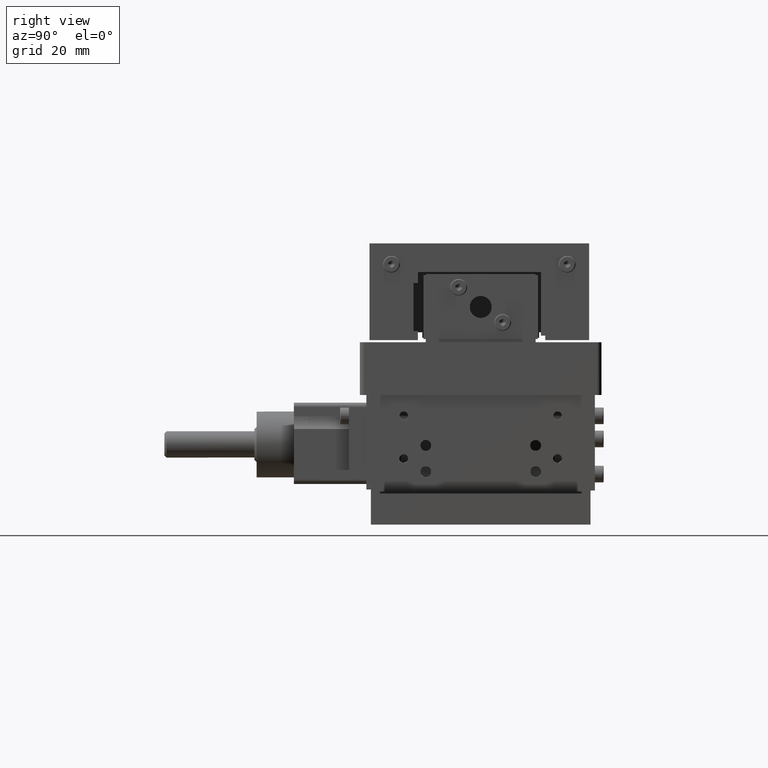
[diagram: clean part render]
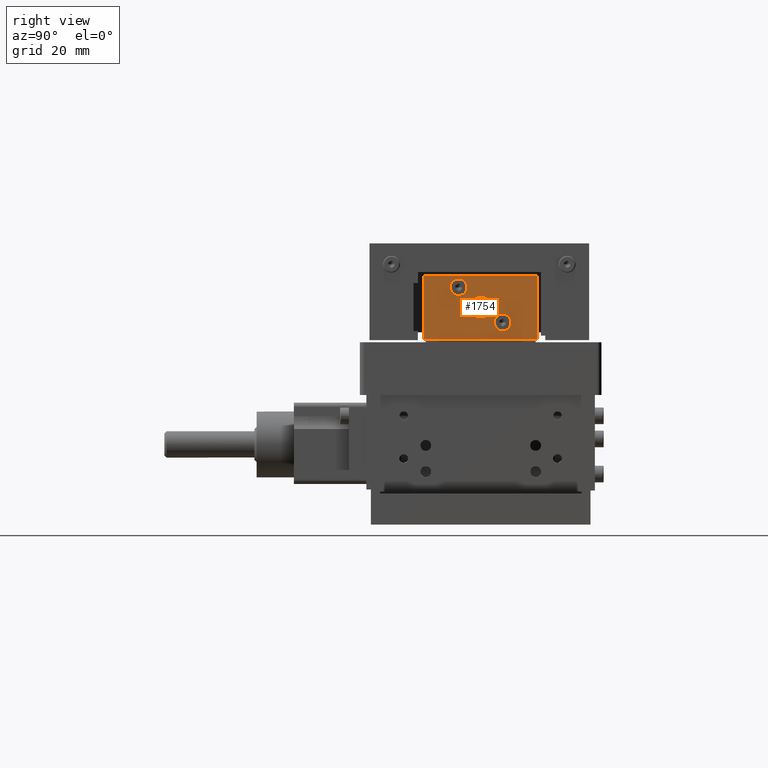
[diagram: same view with one face highlighted and labeled with its STEP entity id]
A machine part, right view. The second image highlights one B-rep face of the part: STEP entity #1754.
In plain terms, the highlighted face is a freeform B-spline surface patch.
Its self-contained STEP definition (entity closure, byte-faithful):
#790=FACE_BOUND('',#4293,.T.);
#791=FACE_BOUND('',#4294,.T.);
#792=FACE_BOUND('',#4295,.T.);
#1754=ADVANCED_FACE('',(#2938,#790,#791,#792),#38884,.T.);
#2938=FACE_OUTER_BOUND('',#4292,.T.);
#4292=EDGE_LOOP('',(#9193,#9194,#9195,#9196));
#4293=EDGE_LOOP('',(#9197,#9198));
#4294=EDGE_LOOP('',(#9199,#9200));
#4295=EDGE_LOOP('',(#9201,#9202));
#9193=ORIENTED_EDGE('',*,*,#33964,.T.);
#9194=ORIENTED_EDGE('',*,*,#33965,.T.);
#9195=ORIENTED_EDGE('',*,*,#33966,.T.);
#9196=ORIENTED_EDGE('',*,*,#33967,.T.);
#9197=ORIENTED_EDGE('',*,*,#33056,.F.);
#9198=ORIENTED_EDGE('',*,*,#33058,.F.);
#9199=ORIENTED_EDGE('',*,*,#33968,.T.);
#9200=ORIENTED_EDGE('',*,*,#33969,.T.);
#9201=ORIENTED_EDGE('',*,*,#33970,.T.);
#9202=ORIENTED_EDGE('',*,*,#33971,.T.);
#13425=PCURVE('',#39227,#19204);
#13427=PCURVE('',#39228,#19206);
#14972=PCURVE('',#38884,#20751);
#14973=PCURVE('',#38884,#20752);
#14974=PCURVE('',#38884,#20753);
#14975=PCURVE('',#38884,#20754);
#14976=PCURVE('',#38884,#20755);
#14977=PCURVE('',#38884,#20756);
#14978=PCURVE('',#38884,#20757);
#14979=PCURVE('',#38884,#20758);
#14980=PCURVE('',#38884,#20759);
#14981=PCURVE('',#38884,#20760);
#14982=PCURVE('',#38885,#20761);
#14986=PCURVE('',#38886,#20765);
#14992=PCURVE('',#38887,#20771);
#14996=PCURVE('',#38888,#20775);
#15004=PCURVE('',#39410,#20783);
#15406=PCURVE('',#39470,#21185);
#15408=PCURVE('',#39471,#21187);
#15635=PCURVE('',#39514,#21414);
#19204=DEFINITIONAL_REPRESENTATION('',(#25483),#87459);
#19206=DEFINITIONAL_REPRESENTATION('',(#25486),#87459);
#20751=DEFINITIONAL_REPRESENTATION('',(#27356),#87459);
#20752=DEFINITIONAL_REPRESENTATION('',(#27358),#87459);
#20753=DEFINITIONAL_REPRESENTATION('',(#27360),#87459);
#20754=DEFINITIONAL_REPRESENTATION('',(#27362),#87459);
#20755=DEFINITIONAL_REPRESENTATION('',(#36088),#87459);
#20756=DEFINITIONAL_REPRESENTATION('',(#36089),#87459);
#20757=DEFINITIONAL_REPRESENTATION('',(#36091),#87459);
#20758=DEFINITIONAL_REPRESENTATION('',(#36093),#87459);
#20759=DEFINITIONAL_REPRESENTATION('',(#36095),#87459);
#20760=DEFINITIONAL_REPRESENTATION('',(#36097),#87459);
#20761=DEFINITIONAL_REPRESENTATION('',(#27363),#87459);
#20765=DEFINITIONAL_REPRESENTATION('',(#27370),#87459);
#20771=DEFINITIONAL_REPRESENTATION('',(#27379),#87459);
#20775=DEFINITIONAL_REPRESENTATION('',(#27385),#87459);
#20783=DEFINITIONAL_REPRESENTATION('',(#27396),#87459);
#21185=DEFINITIONAL_REPRESENTATION('',(#27793),#87459);
#21187=DEFINITIONAL_REPRESENTATION('',(#27796),#87459);
#21414=DEFINITIONAL_REPRESENTATION('',(#28027),#87459);
#25483=B_SPLINE_CURVE_WITH_KNOTS('',1,(#68052,#68053),.UNSPECIFIED.,.F.,
 .F.,(2,2),(-5.96902604182061,0.),.UNSPECIFIED.);
#25486=B_SPLINE_CURVE_WITH_KNOTS('',1,(#68063,#68064),.UNSPECIFIED.,.F.,
 .F.,(2,2),(-5.96902604182061,0.),.UNSPECIFIED.);
#27355=B_SPLINE_CURVE_WITH_KNOTS('',1,(#76144,#76145),.UNSPECIFIED.,.F.,
 .F.,(2,2),(-26.0000000000001,0.),.UNSPECIFIED.);
#27356=B_SPLINE_CURVE_WITH_KNOTS('',1,(#76146,#76147),.UNSPECIFIED.,.F.,
 .F.,(2,2),(-26.0000000000001,0.),.UNSPECIFIED.);
#27357=B_SPLINE_CURVE_WITH_KNOTS('',1,(#76148,#76149),.UNSPECIFIED.,.F.,
 .F.,(2,2),(-14.5,0.),.UNSPECIFIED.);
#27358=B_SPLINE_CURVE_WITH_KNOTS('',1,(#76150,#76151),.UNSPECIFIED.,.F.,
 .F.,(2,2),(-14.5,0.),.UNSPECIFIED.);
#27359=B_SPLINE_CURVE_WITH_KNOTS('',1,(#76152,#76153),.UNSPECIFIED.,.F.,
 .F.,(2,2),(-26.0000000000001,0.),.UNSPECIFIED.);
#27360=B_SPLINE_CURVE_WITH_KNOTS('',1,(#76154,#76155),.UNSPECIFIED.,.F.,
 .F.,(2,2),(-26.0000000000001,0.),.UNSPECIFIED.);
#27361=B_SPLINE_CURVE_WITH_KNOTS('',1,(#76156,#76157),.UNSPECIFIED.,.F.,
 .F.,(2,2),(-14.5,0.),.UNSPECIFIED.);
#27362=B_SPLINE_CURVE_WITH_KNOTS('',1,(#76158,#76159),.UNSPECIFIED.,.F.,
 .F.,(2,2),(-14.5,0.),.UNSPECIFIED.);
#27363=B_SPLINE_CURVE_WITH_KNOTS('',1,(#76210,#76211),.UNSPECIFIED.,.F.,
 .F.,(2,2),(-14.5,0.),.UNSPECIFIED.);
#27370=B_SPLINE_CURVE_WITH_KNOTS('',1,(#76224,#76225),.UNSPECIFIED.,.F.,
 .F.,(2,2),(-26.0000000000001,0.),.UNSPECIFIED.);
#27379=B_SPLINE_CURVE_WITH_KNOTS('',1,(#76242,#76243),.UNSPECIFIED.,.F.,
 .F.,(2,2),(-14.5,0.),.UNSPECIFIED.);
#27385=B_SPLINE_CURVE_WITH_KNOTS('',1,(#76254,#76255),.UNSPECIFIED.,.F.,
 .F.,(2,2),(-26.0000000000001,0.),.UNSPECIFIED.);
#27396=B_SPLINE_CURVE_WITH_KNOTS('',1,(#76281,#76282),.UNSPECIFIED.,.F.,
 .F.,(2,2),(7.85398163397449,15.707963267949),.UNSPECIFIED.);
#27793=B_SPLINE_CURVE_WITH_KNOTS('',1,(#77912,#77913),.UNSPECIFIED.,.F.,
 .F.,(2,2),(0.,5.96902604182061),.UNSPECIFIED.);
#27796=B_SPLINE_CURVE_WITH_KNOTS('',1,(#77918,#77919),.UNSPECIFIED.,.F.,
 .F.,(2,2),(0.,5.96902604182061),.UNSPECIFIED.);
#28027=B_SPLINE_CURVE_WITH_KNOTS('',1,(#78801,#78802),.UNSPECIFIED.,.F.,
 .F.,(2,2),(0.,7.85398163397449),.UNSPECIFIED.);
#30107=SURFACE_CURVE('',#35505,(#13425,#14976),.PCURVE_S1.);
#30109=SURFACE_CURVE('',#35506,(#13427,#14977),.PCURVE_S1.);
#31015=SURFACE_CURVE('',#27355,(#14972,#14996),.PCURVE_S1.);
#31016=SURFACE_CURVE('',#27357,(#14973,#14982),.PCURVE_S1.);
#31017=SURFACE_CURVE('',#27359,(#14974,#14986),.PCURVE_S1.);
#31018=SURFACE_CURVE('',#27361,(#14975,#14992),.PCURVE_S1.);
#31019=SURFACE_CURVE('',#36090,(#14978,#15406),.PCURVE_S1.);
#31020=SURFACE_CURVE('',#36092,(#14979,#15408),.PCURVE_S1.);
#31021=SURFACE_CURVE('',#36094,(#14980,#15635),.PCURVE_S1.);
#31022=SURFACE_CURVE('',#36096,(#14981,#15004),.PCURVE_S1.);
#33056=EDGE_CURVE('',#37588,#37587,#30107,.T.);
#33058=EDGE_CURVE('',#37587,#37588,#30109,.T.);
#33964=EDGE_CURVE('',#38138,#38139,#31015,.T.);
#33965=EDGE_CURVE('',#38139,#38140,#31016,.T.);
#33966=EDGE_CURVE('',#38140,#38141,#31017,.T.);
#33967=EDGE_CURVE('',#38141,#38138,#31018,.T.);
#33968=EDGE_CURVE('',#38143,#38142,#31019,.T.);
#33969=EDGE_CURVE('',#38142,#38143,#31020,.T.);
#33970=EDGE_CURVE('',#38144,#38296,#31021,.T.);
#33971=EDGE_CURVE('',#38296,#38144,#31022,.T.);
#35505=(
BOUNDED_CURVE()
B_SPLINE_CURVE(2,(#68047,#68048,#68049,#68050,#68051),.UNSPECIFIED.,.F.,
 .F.)
B_SPLINE_CURVE_WITH_KNOTS((3,2,3),(-5.96902604182061,-2.9845130209103,0.),
 .UNSPECIFIED.)
CURVE()
GEOMETRIC_REPRESENTATION_ITEM()
RATIONAL_B_SPLINE_CURVE((1.,0.707106781186548,1.,0.707106781186548,1.))
REPRESENTATION_ITEM('')
);
#35506=(
BOUNDED_CURVE()
B_SPLINE_CURVE(2,(#68058,#68059,#68060,#68061,#68062),.UNSPECIFIED.,.F.,
 .F.)
B_SPLINE_CURVE_WITH_KNOTS((3,2,3),(-5.96902604182061,-2.9845130209103,0.),
 .UNSPECIFIED.)
CURVE()
GEOMETRIC_REPRESENTATION_ITEM()
RATIONAL_B_SPLINE_CURVE((1.,0.707106781186548,1.,0.707106781186548,1.))
REPRESENTATION_ITEM('')
);
#36088=(
BOUNDED_CURVE()
B_SPLINE_CURVE(2,(#76160,#76161,#76162,#76163,#76164),.UNSPECIFIED.,.F.,
 .F.)
B_SPLINE_CURVE_WITH_KNOTS((3,2,3),(-5.96902604182061,-2.9845130209103,0.),
 .UNSPECIFIED.)
CURVE()
GEOMETRIC_REPRESENTATION_ITEM()
RATIONAL_B_SPLINE_CURVE((1.,0.707106781186548,1.,0.707106781186548,1.))
REPRESENTATION_ITEM('')
);
#36089=(
BOUNDED_CURVE()
B_SPLINE_CURVE(2,(#76165,#76166,#76167,#76168,#76169),.UNSPECIFIED.,.F.,
 .F.)
B_SPLINE_CURVE_WITH_KNOTS((3,2,3),(-5.96902604182061,-2.9845130209103,0.),
 .UNSPECIFIED.)
CURVE()
GEOMETRIC_REPRESENTATION_ITEM()
RATIONAL_B_SPLINE_CURVE((1.,0.707106781186548,1.,0.707106781186548,1.))
REPRESENTATION_ITEM('')
);
#36090=(
BOUNDED_CURVE()
B_SPLINE_CURVE(2,(#76170,#76171,#76172,#76173,#76174),.UNSPECIFIED.,.F.,
 .F.)
B_SPLINE_CURVE_WITH_KNOTS((3,2,3),(0.,2.9845130209103,5.96902604182061),
 .UNSPECIFIED.)
CURVE()
GEOMETRIC_REPRESENTATION_ITEM()
RATIONAL_B_SPLINE_CURVE((1.,0.707106781186548,1.,0.707106781186548,1.))
REPRESENTATION_ITEM('')
);
#36091=(
BOUNDED_CURVE()
B_SPLINE_CURVE(2,(#76175,#76176,#76177,#76178,#76179),.UNSPECIFIED.,.F.,
 .F.)
B_SPLINE_CURVE_WITH_KNOTS((3,2,3),(0.,2.9845130209103,5.96902604182061),
 .UNSPECIFIED.)
CURVE()
GEOMETRIC_REPRESENTATION_ITEM()
RATIONAL_B_SPLINE_CURVE((1.,0.707106781186548,1.,0.707106781186548,1.))
REPRESENTATION_ITEM('')
);
#36092=(
BOUNDED_CURVE()
B_SPLINE_CURVE(2,(#76180,#76181,#76182,#76183,#76184),.UNSPECIFIED.,.F.,
 .F.)
B_SPLINE_CURVE_WITH_KNOTS((3,2,3),(0.,2.9845130209103,5.96902604182061),
 .UNSPECIFIED.)
CURVE()
GEOMETRIC_REPRESENTATION_ITEM()
RATIONAL_B_SPLINE_CURVE((1.,0.707106781186548,1.,0.707106781186548,1.))
REPRESENTATION_ITEM('')
);
#36093=(
BOUNDED_CURVE()
B_SPLINE_CURVE(2,(#76185,#76186,#76187,#76188,#76189),.UNSPECIFIED.,.F.,
 .F.)
B_SPLINE_CURVE_WITH_KNOTS((3,2,3),(0.,2.9845130209103,5.96902604182061),
 .UNSPECIFIED.)
CURVE()
GEOMETRIC_REPRESENTATION_ITEM()
RATIONAL_B_SPLINE_CURVE((1.,0.707106781186548,1.,0.707106781186548,1.))
REPRESENTATION_ITEM('')
);
#36094=(
BOUNDED_CURVE()
B_SPLINE_CURVE(2,(#76190,#76191,#76192,#76193,#76194),.UNSPECIFIED.,.F.,
 .F.)
B_SPLINE_CURVE_WITH_KNOTS((3,2,3),(0.,3.92699081698724,7.85398163397449),
 .UNSPECIFIED.)
CURVE()
GEOMETRIC_REPRESENTATION_ITEM()
RATIONAL_B_SPLINE_CURVE((1.,0.707106781186548,1.,0.707106781186547,1.))
REPRESENTATION_ITEM('')
);
#36095=(
BOUNDED_CURVE()
B_SPLINE_CURVE(2,(#76195,#76196,#76197,#76198,#76199),.UNSPECIFIED.,.F.,
 .F.)
B_SPLINE_CURVE_WITH_KNOTS((3,2,3),(0.,3.92699081698724,7.85398163397449),
 .UNSPECIFIED.)
CURVE()
GEOMETRIC_REPRESENTATION_ITEM()
RATIONAL_B_SPLINE_CURVE((1.,0.707106781186548,1.,0.707106781186546,1.))
REPRESENTATION_ITEM('')
);
#36096=(
BOUNDED_CURVE()
B_SPLINE_CURVE(2,(#76200,#76201,#76202,#76203,#76204),.UNSPECIFIED.,.F.,
 .F.)
B_SPLINE_CURVE_WITH_KNOTS((3,2,3),(7.85398163397449,11.7809724509617,15.707963267949),
 .UNSPECIFIED.)
CURVE()
GEOMETRIC_REPRESENTATION_ITEM()
RATIONAL_B_SPLINE_CURVE((1.,0.707106781186548,1.,0.707106781186548,1.))
REPRESENTATION_ITEM('')
);
#36097=(
BOUNDED_CURVE()
B_SPLINE_CURVE(2,(#76205,#76206,#76207,#76208,#76209),.UNSPECIFIED.,.F.,
 .F.)
B_SPLINE_CURVE_WITH_KNOTS((3,2,3),(7.85398163397449,11.7809724509617,15.707963267949),
 .UNSPECIFIED.)
CURVE()
GEOMETRIC_REPRESENTATION_ITEM()
RATIONAL_B_SPLINE_CURVE((1.,0.707106781186549,1.,0.707106781186548,1.))
REPRESENTATION_ITEM('')
);
#37587=VERTEX_POINT('',#67072);
#37588=VERTEX_POINT('',#67073);
#38138=VERTEX_POINT('',#67623);
#38139=VERTEX_POINT('',#67624);
#38140=VERTEX_POINT('',#67625);
#38141=VERTEX_POINT('',#67626);
#38142=VERTEX_POINT('',#67627);
#38143=VERTEX_POINT('',#67628);
#38144=VERTEX_POINT('',#67629);
#38296=VERTEX_POINT('',#67781);
#38884=B_SPLINE_SURFACE_WITH_KNOTS('',1,1,((#65301,#65302),(#65303,#65304)),
 .UNSPECIFIED.,.F.,.F.,.F.,(2,2),(2,2),(-15.72,15.72),(-8.82000000000002,
8.82000000000002),.UNSPECIFIED.);
#38885=B_SPLINE_SURFACE_WITH_KNOTS('',1,1,((#65305,#65306),(#65307,#65308)),
 .UNSPECIFIED.,.F.,.F.,.F.,(2,2),(2,2),(-0.220000000000008,1.22),(-1.57,
16.07),.UNSPECIFIED.);
#38886=B_SPLINE_SURFACE_WITH_KNOTS('',1,1,((#65309,#65310),(#65311,#65312)),
 .UNSPECIFIED.,.F.,.F.,.F.,(2,2),(2,2),(-1.22000000000003,0.220000000000005),
(-28.7200000000001,2.72000000000001),.UNSPECIFIED.);
#38887=B_SPLINE_SURFACE_WITH_KNOTS('',1,1,((#65313,#65314),(#65315,#65316)),
 .UNSPECIFIED.,.F.,.F.,.F.,(2,2),(2,2),(-1.22000000000001,0.220000000000002),
(-16.07,1.57),.UNSPECIFIED.);
#38888=B_SPLINE_SURFACE_WITH_KNOTS('',1,1,((#65317,#65318),(#65319,#65320)),
 .UNSPECIFIED.,.F.,.F.,.F.,(2,2),(2,2),(-0.220000000000035,1.22),(-2.72000000000001,
28.7200000000001),.UNSPECIFIED.);
#39227=(
BOUNDED_SURFACE()
B_SPLINE_SURFACE(2,1,((#61695,#61696),(#61697,#61698),(#61699,#61700),(#61701,
#61702),(#61703,#61704),(#61705,#61706),(#61707,#61708),(#61709,#61710),
(#61711,#61712)),.UNSPECIFIED.,.T.,.F.,.F.)
B_SPLINE_SURFACE_WITH_KNOTS((3,2,2,2,3),(2,2),(0.,1.5707963267949,3.14159265358979,
4.71238898038469,6.28318530717959),(0.,2.39999999999965),.UNSPECIFIED.)
GEOMETRIC_REPRESENTATION_ITEM()
RATIONAL_B_SPLINE_SURFACE(((1.,1.),(0.707106781186548,0.707106781186548),
(1.,1.),(0.707106781186548,0.707106781186548),(1.,1.),(0.707106781186548,
0.707106781186548),(1.,1.),(0.707106781186548,0.707106781186548),(1.,1.)))
REPRESENTATION_ITEM('')
SURFACE()
);
#39228=(
BOUNDED_SURFACE()
B_SPLINE_SURFACE(2,1,((#61713,#61714),(#61715,#61716),(#61717,#61718),(#61719,
#61720),(#61721,#61722),(#61723,#61724),(#61725,#61726),(#61727,#61728),
(#61729,#61730)),.UNSPECIFIED.,.T.,.F.,.F.)
B_SPLINE_SURFACE_WITH_KNOTS((3,2,2,2,3),(2,2),(0.,1.5707963267949,3.14159265358979,
4.71238898038469,6.28318530717959),(0.,2.39999999999965),.UNSPECIFIED.)
GEOMETRIC_REPRESENTATION_ITEM()
RATIONAL_B_SPLINE_SURFACE(((1.,1.),(0.707106781186548,0.707106781186548),
(1.,1.),(0.707106781186548,0.707106781186548),(1.,1.),(0.707106781186548,
0.707106781186548),(1.,1.),(0.707106781186548,0.707106781186548),(1.,1.)))
REPRESENTATION_ITEM('')
SURFACE()
);
#39410=(
BOUNDED_SURFACE()
B_SPLINE_SURFACE(1,2,((#65321,#65322,#65323,#65324,#65325),(#65326,#65327,
#65328,#65329,#65330)),.UNSPECIFIED.,.F.,.F.,.F.)
B_SPLINE_SURFACE_WITH_KNOTS((2,2),(3,2,3),(0.,1.44000000000002),(0.,1.5707963267949,
3.14159265358979),.UNSPECIFIED.)
GEOMETRIC_REPRESENTATION_ITEM()
RATIONAL_B_SPLINE_SURFACE(((1.,0.707106781186548,1.,0.707106781186548,1.),
(1.,0.707106781186548,1.,0.707106781186548,1.)))
REPRESENTATION_ITEM('')
SURFACE()
);
#39470=(
BOUNDED_SURFACE()
B_SPLINE_SURFACE(2,1,((#66505,#66506),(#66507,#66508),(#66509,#66510),(#66511,
#66512),(#66513,#66514),(#66515,#66516),(#66517,#66518),(#66519,#66520),
(#66521,#66522)),.UNSPECIFIED.,.T.,.F.,.F.)
B_SPLINE_SURFACE_WITH_KNOTS((3,2,2,2,3),(2,2),(0.,1.5707963267949,3.14159265358979,
4.71238898038469,6.28318530717959),(0.,2.39999999999965),.UNSPECIFIED.)
GEOMETRIC_REPRESENTATION_ITEM()
RATIONAL_B_SPLINE_SURFACE(((1.,1.),(0.707106781186548,0.707106781186548),
(1.,1.),(0.707106781186548,0.707106781186548),(1.,1.),(0.707106781186548,
0.707106781186548),(1.,1.),(0.707106781186548,0.707106781186548),(1.,1.)))
REPRESENTATION_ITEM('')
SURFACE()
);
#39471=(
BOUNDED_SURFACE()
B_SPLINE_SURFACE(2,1,((#66523,#66524),(#66525,#66526),(#66527,#66528),(#66529,
#66530),(#66531,#66532),(#66533,#66534),(#66535,#66536),(#66537,#66538),
(#66539,#66540)),.UNSPECIFIED.,.T.,.F.,.F.)
B_SPLINE_SURFACE_WITH_KNOTS((3,2,2,2,3),(2,2),(0.,1.5707963267949,3.14159265358979,
4.71238898038469,6.28318530717959),(0.,2.39999999999965),.UNSPECIFIED.)
GEOMETRIC_REPRESENTATION_ITEM()
RATIONAL_B_SPLINE_SURFACE(((1.,1.),(0.707106781186548,0.707106781186548),
(1.,1.),(0.707106781186548,0.707106781186548),(1.,1.),(0.707106781186548,
0.707106781186548),(1.,1.),(0.707106781186548,0.707106781186548),(1.,1.)))
REPRESENTATION_ITEM('')
SURFACE()
);
#39514=(
BOUNDED_SURFACE()
B_SPLINE_SURFACE(1,2,((#67025,#67026,#67027,#67028,#67029),(#67030,#67031,
#67032,#67033,#67034)),.UNSPECIFIED.,.F.,.F.,.F.)
B_SPLINE_SURFACE_WITH_KNOTS((2,2),(3,2,3),(0.,1.44000000000002),(3.14159265358979,
4.71238898038469,6.28318530717959),.UNSPECIFIED.)
GEOMETRIC_REPRESENTATION_ITEM()
RATIONAL_B_SPLINE_SURFACE(((1.,0.707106781186548,1.,0.707106781186548,1.),
(1.,0.707106781186548,1.,0.707106781186548,1.)))
REPRESENTATION_ITEM('')
SURFACE()
);
#61695=CARTESIAN_POINT('',(28.1835471895046,-2.87392243176145,54.5190559995517));
#61696=CARTESIAN_POINT('',(25.7835471895049,-2.87392243176145,54.5190559995517));
#61697=CARTESIAN_POINT('',(28.1835471895046,-2.87392243176145,52.6190559995517));
#61698=CARTESIAN_POINT('',(25.7835471895049,-2.87392243176145,52.6190559995517));
#61699=CARTESIAN_POINT('',(28.1835471895046,-4.77392243176145,52.6190559995517));
#61700=CARTESIAN_POINT('',(25.7835471895049,-4.77392243176145,52.6190559995517));
#61701=CARTESIAN_POINT('',(28.1835471895046,-6.67392243176145,52.6190559995517));
#61702=CARTESIAN_POINT('',(25.7835471895049,-6.67392243176145,52.6190559995517));
#61703=CARTESIAN_POINT('',(28.1835471895046,-6.67392243176145,54.5190559995517));
#61704=CARTESIAN_POINT('',(25.7835471895049,-6.67392243176145,54.5190559995517));
#61705=CARTESIAN_POINT('',(28.1835471895046,-6.67392243176145,56.4190559995517));
#61706=CARTESIAN_POINT('',(25.7835471895049,-6.67392243176145,56.4190559995517));
#61707=CARTESIAN_POINT('',(28.1835471895046,-4.77392243176145,56.4190559995517));
#61708=CARTESIAN_POINT('',(25.7835471895049,-4.77392243176145,56.4190559995517));
#61709=CARTESIAN_POINT('',(28.1835471895046,-2.87392243176145,56.4190559995517));
#61710=CARTESIAN_POINT('',(25.7835471895049,-2.87392243176145,56.4190559995517));
#61711=CARTESIAN_POINT('',(28.1835471895046,-2.87392243176145,54.5190559995517));
#61712=CARTESIAN_POINT('',(25.7835471895049,-2.87392243176145,54.5190559995517));
#61713=CARTESIAN_POINT('',(28.1835471895046,-2.87392243176145,54.5190559995517));
#61714=CARTESIAN_POINT('',(25.7835471895049,-2.87392243176145,54.5190559995517));
#61715=CARTESIAN_POINT('',(28.1835471895046,-2.87392243176145,52.6190559995517));
#61716=CARTESIAN_POINT('',(25.7835471895049,-2.87392243176145,52.6190559995517));
#61717=CARTESIAN_POINT('',(28.1835471895046,-4.77392243176145,52.6190559995517));
#61718=CARTESIAN_POINT('',(25.7835471895049,-4.77392243176145,52.6190559995517));
#61719=CARTESIAN_POINT('',(28.1835471895046,-6.67392243176145,52.6190559995517));
#61720=CARTESIAN_POINT('',(25.7835471895049,-6.67392243176145,52.6190559995517));
#61721=CARTESIAN_POINT('',(28.1835471895046,-6.67392243176145,54.5190559995517));
#61722=CARTESIAN_POINT('',(25.7835471895049,-6.67392243176145,54.5190559995517));
#61723=CARTESIAN_POINT('',(28.1835471895046,-6.67392243176145,56.4190559995517));
#61724=CARTESIAN_POINT('',(25.7835471895049,-6.67392243176145,56.4190559995517));
#61725=CARTESIAN_POINT('',(28.1835471895046,-4.77392243176145,56.4190559995517));
#61726=CARTESIAN_POINT('',(25.7835471895049,-4.77392243176145,56.4190559995517));
#61727=CARTESIAN_POINT('',(28.1835471895046,-2.87392243176145,56.4190559995517));
#61728=CARTESIAN_POINT('',(25.7835471895049,-2.87392243176145,56.4190559995517));
#61729=CARTESIAN_POINT('',(28.1835471895046,-2.87392243176145,54.5190559995517));
#61730=CARTESIAN_POINT('',(25.7835471895049,-2.87392243176145,54.5190559995517));
#65301=CARTESIAN_POINT('',(26.0835471895049,-15.4939224317624,41.1990559995544));
#65302=CARTESIAN_POINT('',(26.0835471895049,-15.4939224317624,58.8390559995545));
#65303=CARTESIAN_POINT('',(26.0835471895049,15.9460775682377,41.1990559995545));
#65304=CARTESIAN_POINT('',(26.0835471895049,15.9460775682377,58.8390559995545));
#65305=CARTESIAN_POINT('',(24.8635471895049,-12.7739224317623,41.1990559995545));
#65306=CARTESIAN_POINT('',(24.8635471895049,-12.7739224317624,58.8390559995545));
#65307=CARTESIAN_POINT('',(26.3035471895049,-12.7739224317623,41.1990559995545));
#65308=CARTESIAN_POINT('',(26.3035471895049,-12.7739224317624,58.8390559995545));
#65309=CARTESIAN_POINT('',(26.3035471895049,-15.4939224317624,42.7690559995544));
#65310=CARTESIAN_POINT('',(26.3035471895049,15.9460775682377,42.7690559995545));
#65311=CARTESIAN_POINT('',(24.8635471895049,-15.4939224317624,42.7690559995544));
#65312=CARTESIAN_POINT('',(24.8635471895049,15.9460775682377,42.7690559995545));
#65313=CARTESIAN_POINT('',(26.3035471895049,13.2260775682377,41.1990559995545));
#65314=CARTESIAN_POINT('',(26.3035471895049,13.2260775682377,58.8390559995545));
#65315=CARTESIAN_POINT('',(24.8635471895049,13.2260775682377,41.1990559995545));
#65316=CARTESIAN_POINT('',(24.8635471895049,13.2260775682377,58.8390559995545));
#65317=CARTESIAN_POINT('',(24.8635471895049,-15.4939224317624,57.2690559995545));
#65318=CARTESIAN_POINT('',(24.8635471895049,15.9460775682377,57.2690559995545));
#65319=CARTESIAN_POINT('',(26.3035471895049,-15.4939224317624,57.2690559995545));
#65320=CARTESIAN_POINT('',(26.3035471895049,15.9460775682377,57.2690559995545));
#65321=CARTESIAN_POINT('',(24.8635471895049,-2.27392243176233,50.0190559995545));
#65322=CARTESIAN_POINT('',(24.8635471895049,-2.27392243176233,47.5190559995545));
#65323=CARTESIAN_POINT('',(24.8635471895049,0.226077568237672,47.5190559995545));
#65324=CARTESIAN_POINT('',(24.8635471895049,2.72607756823767,47.5190559995545));
#65325=CARTESIAN_POINT('',(24.8635471895049,2.72607756823767,50.0190559995545));
#65326=CARTESIAN_POINT('',(26.3035471895049,-2.27392243176233,50.0190559995545));
#65327=CARTESIAN_POINT('',(26.3035471895049,-2.27392243176233,47.5190559995545));
#65328=CARTESIAN_POINT('',(26.3035471895049,0.226077568237671,47.5190559995545));
#65329=CARTESIAN_POINT('',(26.3035471895049,2.72607756823767,47.5190559995545));
#65330=CARTESIAN_POINT('',(26.3035471895049,2.72607756823767,50.0190559995545));
#66505=CARTESIAN_POINT('',(28.1835471895046,7.12607756823855,46.5190559995517));
#66506=CARTESIAN_POINT('',(25.7835471895049,7.12607756823855,46.5190559995517));
#66507=CARTESIAN_POINT('',(28.1835471895046,7.12607756823855,44.6190559995517));
#66508=CARTESIAN_POINT('',(25.7835471895049,7.12607756823855,44.6190559995517));
#66509=CARTESIAN_POINT('',(28.1835471895046,5.22607756823856,44.6190559995517));
#66510=CARTESIAN_POINT('',(25.7835471895049,5.22607756823856,44.6190559995517));
#66511=CARTESIAN_POINT('',(28.1835471895046,3.32607756823856,44.6190559995517));
#66512=CARTESIAN_POINT('',(25.7835471895049,3.32607756823856,44.6190559995517));
#66513=CARTESIAN_POINT('',(28.1835471895046,3.32607756823856,46.5190559995517));
#66514=CARTESIAN_POINT('',(25.7835471895049,3.32607756823856,46.5190559995517));
#66515=CARTESIAN_POINT('',(28.1835471895046,3.32607756823856,48.4190559995517));
#66516=CARTESIAN_POINT('',(25.7835471895049,3.32607756823856,48.4190559995517));
#66517=CARTESIAN_POINT('',(28.1835471895046,5.22607756823856,48.4190559995517));
#66518=CARTESIAN_POINT('',(25.7835471895049,5.22607756823856,48.4190559995517));
#66519=CARTESIAN_POINT('',(28.1835471895046,7.12607756823855,48.4190559995517));
#66520=CARTESIAN_POINT('',(25.7835471895049,7.12607756823855,48.4190559995517));
#66521=CARTESIAN_POINT('',(28.1835471895046,7.12607756823855,46.5190559995517));
#66522=CARTESIAN_POINT('',(25.7835471895049,7.12607756823855,46.5190559995517));
#66523=CARTESIAN_POINT('',(28.1835471895046,7.12607756823855,46.5190559995517));
#66524=CARTESIAN_POINT('',(25.7835471895049,7.12607756823855,46.5190559995517));
#66525=CARTESIAN_POINT('',(28.1835471895046,7.12607756823855,44.6190559995517));
#66526=CARTESIAN_POINT('',(25.7835471895049,7.12607756823855,44.6190559995517));
#66527=CARTESIAN_POINT('',(28.1835471895046,5.22607756823856,44.6190559995517));
#66528=CARTESIAN_POINT('',(25.7835471895049,5.22607756823856,44.6190559995517));
#66529=CARTESIAN_POINT('',(28.1835471895046,3.32607756823856,44.6190559995517));
#66530=CARTESIAN_POINT('',(25.7835471895049,3.32607756823856,44.6190559995517));
#66531=CARTESIAN_POINT('',(28.1835471895046,3.32607756823856,46.5190559995517));
#66532=CARTESIAN_POINT('',(25.7835471895049,3.32607756823856,46.5190559995517));
#66533=CARTESIAN_POINT('',(28.1835471895046,3.32607756823856,48.4190559995517));
#66534=CARTESIAN_POINT('',(25.7835471895049,3.32607756823856,48.4190559995517));
#66535=CARTESIAN_POINT('',(28.1835471895046,5.22607756823856,48.4190559995517));
#66536=CARTESIAN_POINT('',(25.7835471895049,5.22607756823856,48.4190559995517));
#66537=CARTESIAN_POINT('',(28.1835471895046,7.12607756823855,48.4190559995517));
#66538=CARTESIAN_POINT('',(25.7835471895049,7.12607756823855,48.4190559995517));
#66539=CARTESIAN_POINT('',(28.1835471895046,7.12607756823855,46.5190559995517));
#66540=CARTESIAN_POINT('',(25.7835471895049,7.12607756823855,46.5190559995517));
#67025=CARTESIAN_POINT('',(24.8635471895049,2.72607756823767,50.0190559995545));
#67026=CARTESIAN_POINT('',(24.8635471895049,2.72607756823767,52.5190559995545));
#67027=CARTESIAN_POINT('',(24.8635471895049,0.226077568237672,52.5190559995545));
#67028=CARTESIAN_POINT('',(24.8635471895049,-2.27392243176233,52.5190559995545));
#67029=CARTESIAN_POINT('',(24.8635471895049,-2.27392243176233,50.0190559995545));
#67030=CARTESIAN_POINT('',(26.3035471895049,2.72607756823767,50.0190559995545));
#67031=CARTESIAN_POINT('',(26.3035471895049,2.72607756823767,52.5190559995545));
#67032=CARTESIAN_POINT('',(26.3035471895049,0.226077568237671,52.5190559995545));
#67033=CARTESIAN_POINT('',(26.3035471895049,-2.27392243176233,52.5190559995545));
#67034=CARTESIAN_POINT('',(26.3035471895049,-2.27392243176233,50.0190559995545));
#67072=CARTESIAN_POINT('',(26.0835471895049,-6.67392243176145,54.5190559995517));
#67073=CARTESIAN_POINT('',(26.0835471895049,-2.87392243176145,54.5190559995517));
#67623=CARTESIAN_POINT('',(26.0835471895049,13.2260775682377,57.2690559995545));
#67624=CARTESIAN_POINT('',(26.0835471895049,-12.7739224317624,57.2690559995545));
#67625=CARTESIAN_POINT('',(26.0835471895049,-12.7739224317623,42.7690559995545));
#67626=CARTESIAN_POINT('',(26.0835471895049,13.2260775682377,42.7690559995545));
#67627=CARTESIAN_POINT('',(26.0835471895049,7.12607756823855,46.5190559995517));
#67628=CARTESIAN_POINT('',(26.0835471895049,3.32607756823855,46.5190559995517));
#67629=CARTESIAN_POINT('',(26.0835471895049,-2.27392243176233,50.0190559995545));
#67781=CARTESIAN_POINT('',(26.0835471895049,2.72607756823767,50.0190559995545));
#68047=CARTESIAN_POINT('',(26.0835471895049,-2.87392243176145,54.5190559995517));
#68048=CARTESIAN_POINT('',(26.0835471895049,-2.87392243176145,56.4190559995517));
#68049=CARTESIAN_POINT('',(26.0835471895049,-4.77392243176145,56.4190559995517));
#68050=CARTESIAN_POINT('',(26.0835471895049,-6.67392243176145,56.4190559995517));
#68051=CARTESIAN_POINT('',(26.0835471895049,-6.67392243176145,54.5190559995517));
#68052=CARTESIAN_POINT('',(6.28318530717959,2.09999999999967));
#68053=CARTESIAN_POINT('',(3.14159265358979,2.09999999999967));
#68058=CARTESIAN_POINT('',(26.0835471895049,-6.67392243176145,54.5190559995517));
#68059=CARTESIAN_POINT('',(26.0835471895049,-6.67392243176145,52.6190559995517));
#68060=CARTESIAN_POINT('',(26.0835471895049,-4.77392243176145,52.6190559995517));
#68061=CARTESIAN_POINT('',(26.0835471895049,-2.87392243176145,52.6190559995517));
#68062=CARTESIAN_POINT('',(26.0835471895049,-2.87392243176145,54.5190559995517));
#68063=CARTESIAN_POINT('',(3.14159265358979,2.09999999999968));
#68064=CARTESIAN_POINT('',(0.,2.09999999999967));
#76144=CARTESIAN_POINT('',(26.0835471895049,13.2260775682377,57.2690559995545));
#76145=CARTESIAN_POINT('',(26.0835471895049,-12.7739224317624,57.2690559995545));
#76146=CARTESIAN_POINT('',(13.,7.24999999999998));
#76147=CARTESIAN_POINT('',(-13.,7.25000000000002));
#76148=CARTESIAN_POINT('',(26.0835471895049,-12.7739224317624,57.2690559995545));
#76149=CARTESIAN_POINT('',(26.0835471895049,-12.7739224317623,42.7690559995545));
#76150=CARTESIAN_POINT('',(-13.,7.25000000000002));
#76151=CARTESIAN_POINT('',(-13.,-7.24999999999998));
#76152=CARTESIAN_POINT('',(26.0835471895049,-12.7739224317623,42.7690559995545));
#76153=CARTESIAN_POINT('',(26.0835471895049,13.2260775682377,42.7690559995545));
#76154=CARTESIAN_POINT('',(-13.,-7.24999999999998));
#76155=CARTESIAN_POINT('',(13.,-7.25000000000002));
#76156=CARTESIAN_POINT('',(26.0835471895049,13.2260775682377,42.7690559995545));
#76157=CARTESIAN_POINT('',(26.0835471895049,13.2260775682377,57.2690559995545));
#76158=CARTESIAN_POINT('',(13.,-7.25000000000002));
#76159=CARTESIAN_POINT('',(13.,7.24999999999998));
#76160=CARTESIAN_POINT('',(-3.09999999999912,4.4999999999972));
#76161=CARTESIAN_POINT('',(-3.09999999999912,6.3999999999972));
#76162=CARTESIAN_POINT('',(-4.99999999999912,6.3999999999972));
#76163=CARTESIAN_POINT('',(-6.89999999999912,6.3999999999972));
#76164=CARTESIAN_POINT('',(-6.89999999999913,4.4999999999972));
#76165=CARTESIAN_POINT('',(-6.89999999999913,4.4999999999972));
#76166=CARTESIAN_POINT('',(-6.89999999999913,2.59999999999721));
#76167=CARTESIAN_POINT('',(-4.99999999999913,2.5999999999972));
#76168=CARTESIAN_POINT('',(-3.09999999999913,2.5999999999972));
#76169=CARTESIAN_POINT('',(-3.09999999999912,4.4999999999972));
#76170=CARTESIAN_POINT('',(26.0835471895049,3.32607756823855,46.5190559995517));
#76171=CARTESIAN_POINT('',(26.0835471895049,3.32607756823855,48.4190559995517));
#76172=CARTESIAN_POINT('',(26.0835471895049,5.22607756823855,48.4190559995517));
#76173=CARTESIAN_POINT('',(26.0835471895049,7.12607756823855,48.4190559995517));
#76174=CARTESIAN_POINT('',(26.0835471895049,7.12607756823855,46.5190559995517));
#76175=CARTESIAN_POINT('',(3.10000000000087,-3.50000000000281));
#76176=CARTESIAN_POINT('',(3.10000000000087,-1.60000000000281));
#76177=CARTESIAN_POINT('',(5.00000000000087,-1.60000000000282));
#76178=CARTESIAN_POINT('',(6.90000000000087,-1.60000000000282));
#76179=CARTESIAN_POINT('',(6.90000000000087,-3.50000000000282));
#76180=CARTESIAN_POINT('',(26.0835471895049,7.12607756823855,46.5190559995517));
#76181=CARTESIAN_POINT('',(26.0835471895049,7.12607756823855,44.6190559995517));
#76182=CARTESIAN_POINT('',(26.0835471895049,5.22607756823855,44.6190559995517));
#76183=CARTESIAN_POINT('',(26.0835471895049,3.32607756823855,44.6190559995517));
#76184=CARTESIAN_POINT('',(26.0835471895049,3.32607756823855,46.5190559995517));
#76185=CARTESIAN_POINT('',(6.90000000000087,-3.50000000000282));
#76186=CARTESIAN_POINT('',(6.90000000000086,-5.40000000000282));
#76187=CARTESIAN_POINT('',(5.00000000000086,-5.40000000000281));
#76188=CARTESIAN_POINT('',(3.10000000000086,-5.40000000000281));
#76189=CARTESIAN_POINT('',(3.10000000000087,-3.50000000000281));
#76190=CARTESIAN_POINT('',(26.0835471895049,-2.27392243176233,50.0190559995545));
#76191=CARTESIAN_POINT('',(26.0835471895049,-2.27392243176233,52.5190559995545));
#76192=CARTESIAN_POINT('',(26.0835471895049,0.226077568237668,52.5190559995545));
#76193=CARTESIAN_POINT('',(26.0835471895049,2.72607756823767,52.5190559995545));
#76194=CARTESIAN_POINT('',(26.0835471895049,2.72607756823767,50.0190559995545));
#76195=CARTESIAN_POINT('',(-2.50000000000002,3.19181808994172E-15));
#76196=CARTESIAN_POINT('',(-2.50000000000002,2.50000000000001));
#76197=CARTESIAN_POINT('',(-1.59872115546023E-14,2.5));
#76198=CARTESIAN_POINT('',(2.5,2.5));
#76199=CARTESIAN_POINT('',(2.49999999999998,-1.51864409336615E-14));
#76200=CARTESIAN_POINT('',(26.0835471895049,2.72607756823767,50.0190559995545));
#76201=CARTESIAN_POINT('',(26.0835471895049,2.72607756823766,47.5190559995545));
#76202=CARTESIAN_POINT('',(26.0835471895049,0.226077568237668,47.5190559995545));
#76203=CARTESIAN_POINT('',(26.0835471895049,-2.27392243176233,47.5190559995545));
#76204=CARTESIAN_POINT('',(26.0835471895049,-2.27392243176233,50.0190559995545));
#76205=CARTESIAN_POINT('',(2.49999999999998,-1.51864409336615E-14));
#76206=CARTESIAN_POINT('',(2.49999999999996,-2.5));
#76207=CARTESIAN_POINT('',(-2.30926389122033E-14,-2.5));
#76208=CARTESIAN_POINT('',(-2.50000000000002,-2.49999999999999));
#76209=CARTESIAN_POINT('',(-2.50000000000002,3.19181808994172E-15));
#76210=CARTESIAN_POINT('',(0.999999999999994,14.5));
#76211=CARTESIAN_POINT('',(1.,3.86926377127647E-16));
#76224=CARTESIAN_POINT('',(-1.00000000000003,-26.0000000000001));
#76225=CARTESIAN_POINT('',(-1.,1.14973743810154E-15));
#76242=CARTESIAN_POINT('',(-1.00000000000001,-14.5));
#76243=CARTESIAN_POINT('',(-1.,3.86926377127644E-16));
#76254=CARTESIAN_POINT('',(0.99999999999997,26.0000000000001));
#76255=CARTESIAN_POINT('',(1.,1.14973743810154E-15));
#76281=CARTESIAN_POINT('',(1.22000000000002,3.14159265358979));
#76282=CARTESIAN_POINT('',(1.22000000000001,0.));
#77912=CARTESIAN_POINT('',(3.14159265358979,2.09999999999967));
#77913=CARTESIAN_POINT('',(6.28318530717959,2.09999999999967));
#77918=CARTESIAN_POINT('',(0.,2.09999999999967));
#77919=CARTESIAN_POINT('',(3.14159265358979,2.09999999999968));
#78801=CARTESIAN_POINT('',(1.22000000000001,6.28318530717959));
#78802=CARTESIAN_POINT('',(1.22000000000002,3.14159265358979));
#87459=(
GEOMETRIC_REPRESENTATION_CONTEXT(2)
PARAMETRIC_REPRESENTATION_CONTEXT()
REPRESENTATION_CONTEXT('pspace','')
);